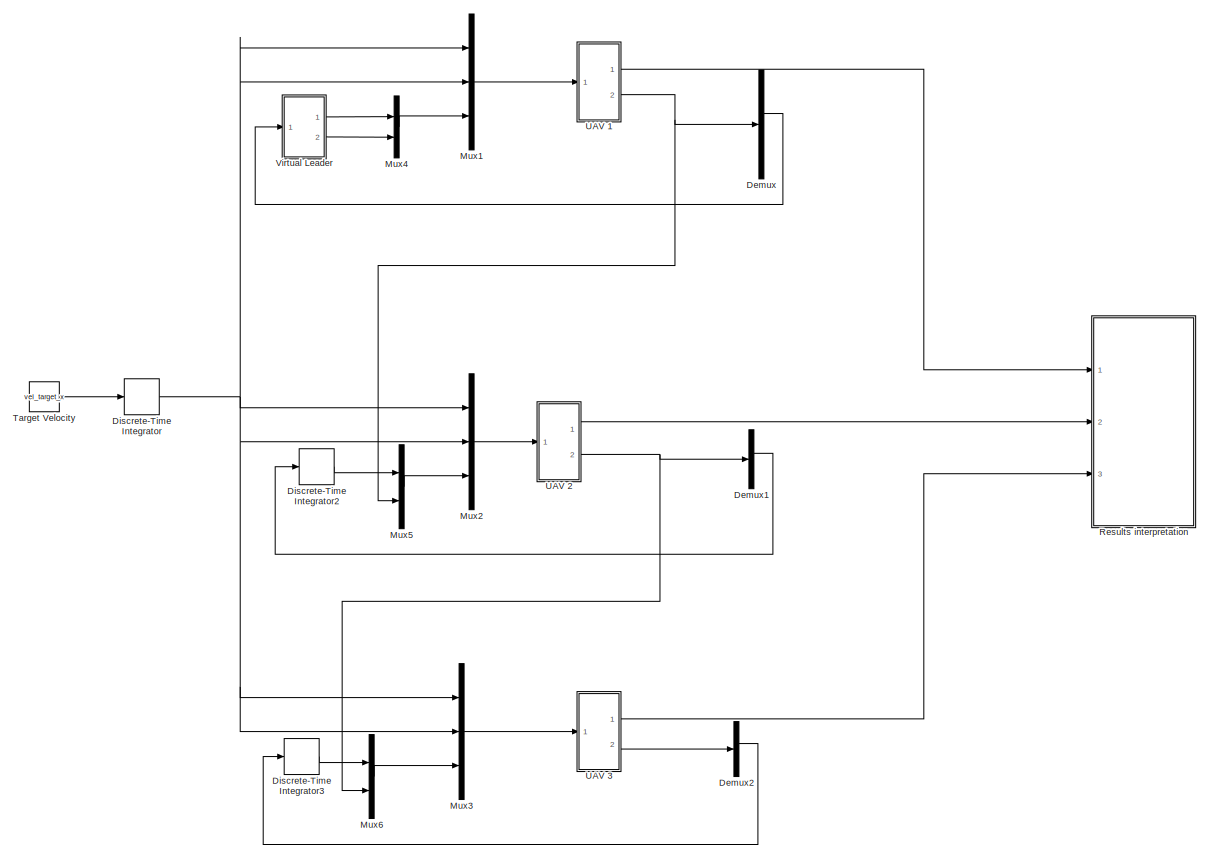
[diagram: root canvas - part 1/2, most of the canvas]
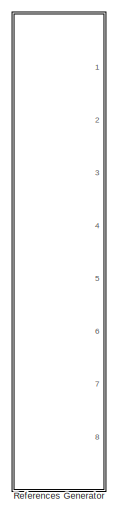
[diagram: root canvas - part 2/2, middle left region]
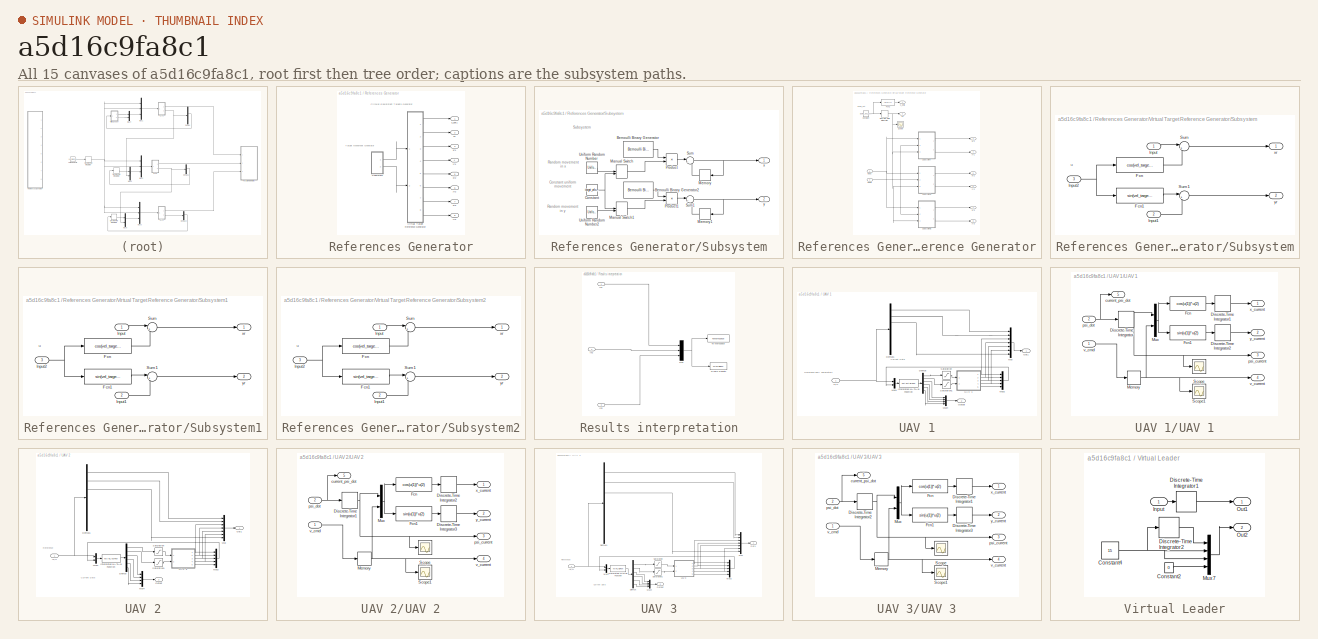
[diagram: thumbnail index - all 15 canvases of the model, root first then tree order]
MODEL slx_a5d16c9fa8c1
KIND model
CONFIG AbsTol = auto
CONFIG EnableMultiTasking = off
CONFIG FixedStep = auto
CONFIG MaxStep = auto
CONFIG MinStep = auto
CONFIG RelTol = 1e-3
CONFIG SampleTimeConstraint = Unconstrained
CONFIG SolverName = VariableStepAuto
CONFIG StartTime = 0.0
CONFIG StopTime = Ttotal
BLOCK [Demux] Demux
  Ports = [1, 4]
BLOCK [Demux] Demux1
  Ports = [1, 4]
BLOCK [Demux] Demux2
  Ports = [1, 4]
BLOCK [DiscreteIntegrator] Discrete-Time Integrator
  ICPrevOutput = DiscIntNeverNeededParam
  ICPrevScaledInput = DiscIntNeverNeededParam
  InitialConditionSetting = Auto
  Ports = [1, 1]
  SampleTime = Ts
BLOCK [DiscreteIntegrator] Discrete-Time Integrator2
  ICPrevOutput = DiscIntNeverNeededParam
  ICPrevScaledInput = DiscIntNeverNeededParam
  InitialConditionSetting = Auto
  Ports = [1, 1]
  SampleTime = Ts
BLOCK [DiscreteIntegrator] Discrete-Time Integrator3
  ICPrevOutput = DiscIntNeverNeededParam
  ICPrevScaledInput = DiscIntNeverNeededParam
  InitialConditionSetting = Auto
  Ports = [1, 1]
  SampleTime = Ts
BLOCK [Mux] Mux1
  DisplayOption = bar
  Inputs = 3
  Ports = [3, 1]
BLOCK [Mux] Mux2
  DisplayOption = bar
  Inputs = 3
  Ports = [3, 1]
BLOCK [Mux] Mux3
  DisplayOption = bar
  Inputs = 3
  Ports = [3, 1]
BLOCK [Mux] Mux4
  DisplayOption = bar
  Inputs = 2
  Ports = [2, 1]
BLOCK [Mux] Mux5
  DisplayOption = bar
  Inputs = 2
  Ports = [2, 1]
BLOCK [Mux] Mux6
  DisplayOption = bar
  Inputs = 2
  Ports = [2, 1]
BLOCK [SubSystem] References Generator
  Commented = on
  Ports = [0, 8]
  RequestExecContextInheritance = off
BLOCK [SubSystem] References Generator/Subsystem
  Commented = on
  Ports = [0, 2]
  RequestExecContextInheritance = off
BLOCK [Reference] References Generator/Subsystem/Bernoulli Binary Generator  REF=commrandsrc3/Bernoulli Binary
Generator
  Ports = [0, 1]
  SourceBlock = commrandsrc3/Bernoulli Binary\nGenerator
  SourceProductBaseCode = CM
  SourceType = Bernoulli Binary Generator
BLOCK [Reference] References Generator/Subsystem/Bernoulli Binary Generator2  REF=commrandsrc3/Bernoulli Binary
Generator
  Ports = [0, 1]
  SourceBlock = commrandsrc3/Bernoulli Binary\nGenerator
  SourceProductBaseCode = CM
  SourceType = Bernoulli Binary Generator
BLOCK [Constant] References Generator/Subsystem/Constant
  SampleTime = Ts
  Value = target_velocity * Ts
BLOCK [ManualSwitch] References Generator/Subsystem/Manual Switch
  CurrentSetting = 0
BLOCK [ManualSwitch] References Generator/Subsystem/Manual Switch1
BLOCK [Memory] References Generator/Subsystem/Memory
  InitialCondition = x0
  NameLocation = top
BLOCK [Memory] References Generator/Subsystem/Memory1
  InitialCondition = y0
  NameLocation = top
BLOCK [Product] References Generator/Subsystem/Product
  Ports = [2, 1]
BLOCK [Product] References Generator/Subsystem/Product1
  Ports = [2, 1]
BLOCK [Sum] References Generator/Subsystem/Sum
  Inputs = |++
  Ports = [2, 1]
BLOCK [Sum] References Generator/Subsystem/Sum1
  Inputs = |++
  Ports = [2, 1]
BLOCK [UniformRandomNumber] References Generator/Subsystem/Uniform Random Number
  Maximum = 3
  Minimum = 0
  SampleTime = Ts
  Seed = def_seed
BLOCK [UniformRandomNumber] References Generator/Subsystem/Uniform Random Number2
  Maximum = 3
  Minimum = 0
  SampleTime = Ts
  Seed = def_seed
BLOCK [Outport] References Generator/Subsystem/x
BLOCK [Outport] References Generator/Subsystem/y
  Port = 2
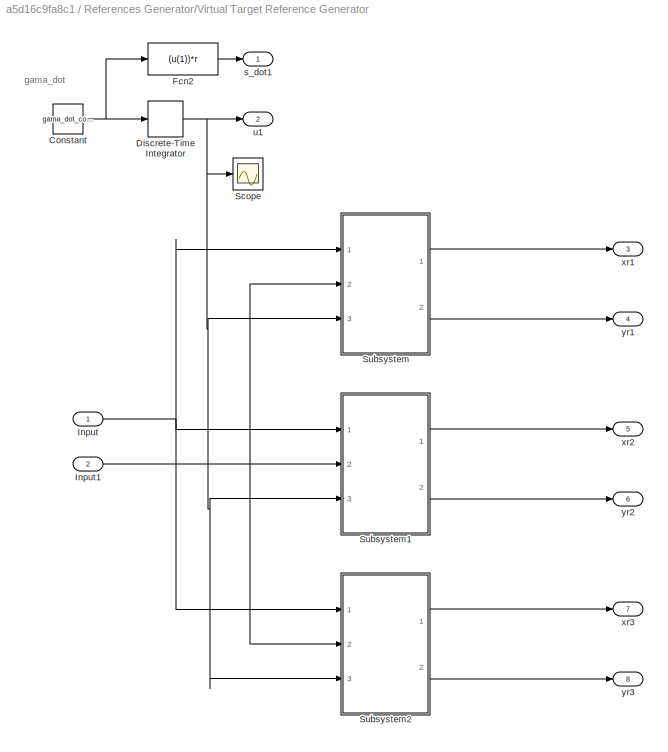
BLOCK [SubSystem] References Generator/Virtual Target Reference Generator
  Ports = [2, 8]
  RequestExecContextInheritance = off
BLOCK [Constant] References Generator/Virtual Target Reference Generator/Constant
  SampleTime = Ts
  Value = gama_dot_constant
BLOCK [DiscreteIntegrator] References Generator/Virtual Target Reference Generator/Discrete-Time Integrator
  ICPrevOutput = DiscIntNeverNeededParam
  ICPrevScaledInput = DiscIntNeverNeededParam
  InitialConditionSetting = Auto
  Ports = [1, 1]
  SampleTime = Ts
BLOCK [Fcn] References Generator/Virtual Target Reference Generator/Fcn2
  Expr = (u(1))*r
BLOCK [Inport] References Generator/Virtual Target Reference Generator/Input
BLOCK [Inport] References Generator/Virtual Target Reference Generator/Input1
  Port = 2
BLOCK [Scope] References Generator/Virtual Target Reference Generator/Scope
  Floating = off
  NumInputPorts = 1
  Ports = [1]
  ScopeSpecificationString = Simulink.scopes.TimeScopeBlockCfg('CurrentConfiguration', extmgr.ConfigurationSet(extmgr.Configuration('Core','General UI',true),extmgr.Configuration('Core','Source UI',true),extmgr.Configuration('Sources','WiredSimulink',true,'DataLoggingVariableName','ScopeData1'),extmgr.Configuration('Visuals','Time Domain',true,'SerializedDisplays',{struct('MinYLimReal','-0.015','MaxYLimReal','0.135','YLabelRe...<+1443ch>
BLOCK [SubSystem] References Generator/Virtual Target Reference Generator/Subsystem
  Ports = [3, 2]
  RequestExecContextInheritance = off
BLOCK [Fcn] References Generator/Virtual Target Reference Generator/Subsystem/Fcn
  Expr = cos(vel_target*u(1))*r
BLOCK [Fcn] References Generator/Virtual Target Reference Generator/Subsystem/Fcn1
  Expr = sin(vel_target*u(1))*r
BLOCK [Inport] References Generator/Virtual Target Reference Generator/Subsystem/Input
BLOCK [Inport] References Generator/Virtual Target Reference Generator/Subsystem/Input1
  Port = 2
BLOCK [Inport] References Generator/Virtual Target Reference Generator/Subsystem/Input2
  Port = 3
BLOCK [Sum] References Generator/Virtual Target Reference Generator/Subsystem/Sum
  Inputs = |++
  NameLocation = top
  Ports = [2, 1]
BLOCK [Sum] References Generator/Virtual Target Reference Generator/Subsystem/Sum1
  Inputs = |++
  Ports = [2, 1]
BLOCK [Outport] References Generator/Virtual Target Reference Generator/Subsystem/xr
  VectorParamsAs1DForOutWhenUnconnected = off
BLOCK [Outport] References Generator/Virtual Target Reference Generator/Subsystem/yr
  Port = 2
  VectorParamsAs1DForOutWhenUnconnected = off
BLOCK [SubSystem] References Generator/Virtual Target Reference Generator/Subsystem1
  Ports = [3, 2]
  RequestExecContextInheritance = off
BLOCK [Fcn] References Generator/Virtual Target Reference Generator/Subsystem1/Fcn
  Expr = cos(vel_target*u(1) + 2*pi/N)*r
BLOCK [Fcn] References Generator/Virtual Target Reference Generator/Subsystem1/Fcn1
  Expr = sin(vel_target*u(1) + 2*pi/N)*r
BLOCK [Inport] References Generator/Virtual Target Reference Generator/Subsystem1/Input
BLOCK [Inport] References Generator/Virtual Target Reference Generator/Subsystem1/Input1
  Port = 2
BLOCK [Inport] References Generator/Virtual Target Reference Generator/Subsystem1/Input2
  Port = 3
BLOCK [Sum] References Generator/Virtual Target Reference Generator/Subsystem1/Sum
  Inputs = |++
  NameLocation = top
  Ports = [2, 1]
BLOCK [Sum] References Generator/Virtual Target Reference Generator/Subsystem1/Sum1
  Inputs = |++
  Ports = [2, 1]
BLOCK [Outport] References Generator/Virtual Target Reference Generator/Subsystem1/xr
  VectorParamsAs1DForOutWhenUnconnected = off
BLOCK [Outport] References Generator/Virtual Target Reference Generator/Subsystem1/yr
  Port = 2
  VectorParamsAs1DForOutWhenUnconnected = off
BLOCK [SubSystem] References Generator/Virtual Target Reference Generator/Subsystem2
  Ports = [3, 2]
  RequestExecContextInheritance = off
BLOCK [Fcn] References Generator/Virtual Target Reference Generator/Subsystem2/Fcn
  Expr = cos(vel_target*u(1) + (2*2*pi)/N)*r
BLOCK [Fcn] References Generator/Virtual Target Reference Generator/Subsystem2/Fcn1
  Expr = sin(vel_target*u(1) + (2*2*pi)/N)*r
BLOCK [Inport] References Generator/Virtual Target Reference Generator/Subsystem2/Input
BLOCK [Inport] References Generator/Virtual Target Reference Generator/Subsystem2/Input1
  Port = 2
BLOCK [Inport] References Generator/Virtual Target Reference Generator/Subsystem2/Input2
  Port = 3
BLOCK [Sum] References Generator/Virtual Target Reference Generator/Subsystem2/Sum
  Inputs = |++
  NameLocation = top
  Ports = [2, 1]
BLOCK [Sum] References Generator/Virtual Target Reference Generator/Subsystem2/Sum1
  Inputs = |++
  Ports = [2, 1]
BLOCK [Outport] References Generator/Virtual Target Reference Generator/Subsystem2/xr
  VectorParamsAs1DForOutWhenUnconnected = off
BLOCK [Outport] References Generator/Virtual Target Reference Generator/Subsystem2/yr
  Port = 2
  VectorParamsAs1DForOutWhenUnconnected = off
BLOCK [Outport] References Generator/Virtual Target Reference Generator/s_dot1
  VectorParamsAs1DForOutWhenUnconnected = off
BLOCK [Outport] References Generator/Virtual Target Reference Generator/u1
  Port = 2
  VectorParamsAs1DForOutWhenUnconnected = off
BLOCK [Outport] References Generator/Virtual Target Reference Generator/xr1
  Port = 3
  VectorParamsAs1DForOutWhenUnconnected = off
BLOCK [Outport] References Generator/Virtual Target Reference Generator/xr2
  Port = 5
  VectorParamsAs1DForOutWhenUnconnected = off
BLOCK [Outport] References Generator/Virtual Target Reference Generator/xr3
  Port = 7
  VectorParamsAs1DForOutWhenUnconnected = off
BLOCK [Outport] References Generator/Virtual Target Reference Generator/yr1
  Port = 4
  VectorParamsAs1DForOutWhenUnconnected = off
BLOCK [Outport] References Generator/Virtual Target Reference Generator/yr2
  Port = 6
  VectorParamsAs1DForOutWhenUnconnected = off
BLOCK [Outport] References Generator/Virtual Target Reference Generator/yr3
  Port = 8
  VectorParamsAs1DForOutWhenUnconnected = off
BLOCK [Outport] References Generator/s_dot1
BLOCK [Outport] References Generator/u1
  Port = 2
BLOCK [Outport] References Generator/xr1
  Port = 3
BLOCK [Outport] References Generator/xr2
  Port = 5
BLOCK [Outport] References Generator/xr3
  Port = 7
BLOCK [Outport] References Generator/yr1
  Port = 4
BLOCK [Outport] References Generator/yr2
  Port = 6
BLOCK [Outport] References Generator/yr3
  Port = 8
BLOCK [SubSystem] Results interpretation
  Ports = [3]
  RequestExecContextInheritance = off
BLOCK [MATLABFcn] Results interpretation/Draws Results
  MATLABFcn = draw_results
  OutputDimensions = 0
  Ports = [1]
BLOCK [Inport] Results interpretation/In1
BLOCK [Inport] Results interpretation/In2
  Port = 2
BLOCK [Inport] Results interpretation/In3
  Port = 3
BLOCK [Mux] Results interpretation/Mux
  DisplayOption = bar
  Inputs = 3
  Ports = [3, 1]
BLOCK [ToWorkspace] Results interpretation/To Workspace
  FixptAsFi = on
  MaxDataPoints = inf
  Ports = [1]
  SampleTime = -1
  VariableName = simulation_data
BLOCK [Constant] Target Velocity
  SampleTime = Ts
  Value = vel_target_x
BLOCK [SubSystem] UAV 1
  Ports = [1, 2]
  RequestExecContextInheritance = off
BLOCK [Inport] UAV 1/(x;y)
BLOCK [Demux] UAV 1/Demux
  Outputs = 6
  Ports = [1, 6]
BLOCK [Demux] UAV 1/Demux1
  Outputs = 7
  Ports = [1, 7]
BLOCK [MATLABFcn] UAV 1/Interpreted MATLAB Function
  MATLABFcn = implemented_controller
  OutputDimensions = 6
  Ports = [1, 1]
BLOCK [Mux] UAV 1/Mux
  DisplayOption = bar
  Inputs = 7
  Ports = [7, 1]
BLOCK [Mux] UAV 1/Mux1
  DisplayOption = bar
  Inputs = 2
  Ports = [2, 1]
BLOCK [Mux] UAV 1/Mux2
  DisplayOption = bar
  Inputs = 5
  Ports = [5, 1]
BLOCK [Mux] UAV 1/Mux4
  DisplayOption = bar
  Ports = [4, 1]
BLOCK [Outport] UAV 1/Out1
BLOCK [Outport] UAV 1/Output
  Port = 2
BLOCK [Saturate] UAV 1/Saturation
  LowerLimit = min_vel
  UpperLimit = max_vel
BLOCK [Saturate] UAV 1/Saturation1
  LowerLimit = min_psi
  UpperLimit = max_psi
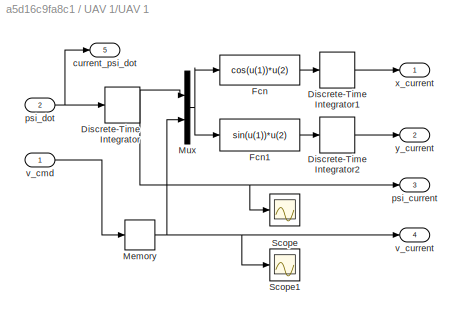
BLOCK [SubSystem] UAV 1/UAV 1
  Ports = [2, 5]
  RequestExecContextInheritance = off
BLOCK [DiscreteIntegrator] UAV 1/UAV 1/Discrete-Time Integrator
  ICPrevOutput = DiscIntNeverNeededParam
  ICPrevScaledInput = DiscIntNeverNeededParam
  InitialCondition = drone1_psi0
  InitialConditionSetting = Auto
  Ports = [1, 1]
  SampleTime = Ts
BLOCK [DiscreteIntegrator] UAV 1/UAV 1/Discrete-Time Integrator1
  ICPrevOutput = DiscIntNeverNeededParam
  ICPrevScaledInput = DiscIntNeverNeededParam
  InitialCondition = drone1_x0
  InitialConditionSetting = Auto
  Ports = [1, 1]
  SampleTime = Ts
BLOCK [DiscreteIntegrator] UAV 1/UAV 1/Discrete-Time Integrator2
  ICPrevOutput = DiscIntNeverNeededParam
  ICPrevScaledInput = DiscIntNeverNeededParam
  InitialCondition = drone1_y0
  InitialConditionSetting = Auto
  Ports = [1, 1]
  SampleTime = Ts
BLOCK [Fcn] UAV 1/UAV 1/Fcn
  Expr = cos(u(1))*u(2)
BLOCK [Fcn] UAV 1/UAV 1/Fcn1
  Expr = sin(u(1))*u(2)
BLOCK [Memory] UAV 1/UAV 1/Memory
  InitialCondition = drone1_v0
BLOCK [Mux] UAV 1/UAV 1/Mux
  DisplayOption = bar
  Inputs = 2
  Ports = [2, 1]
BLOCK [Scope] UAV 1/UAV 1/Scope
  Floating = off
  NumInputPorts = 1
  Ports = [1]
  ScopeSpecificationString = Simulink.scopes.TimeScopeBlockCfg('CurrentConfiguration', extmgr.ConfigurationSet(extmgr.Configuration('Core','General UI',true),extmgr.Configuration('Core','Source UI',true),extmgr.Configuration('Sources','WiredSimulink',true),extmgr.Configuration('Visuals','Time Domain',true,'SerializedDisplays',{struct('MinYLimReal','-1.15856','MaxYLimReal','1.67135','YLabelReal','','MinYLimMag','0.00000','MaxY...<+1383ch>  <repeated x3 — deduplicated; at blocks: Scope>
BLOCK [Scope] UAV 1/UAV 1/Scope1
  Floating = off
  NumInputPorts = 1
  Ports = [1]
  ScopeSpecificationString = Simulink.scopes.TimeScopeBlockCfg('CurrentConfiguration', extmgr.ConfigurationSet(extmgr.Configuration('Core','General UI',true),extmgr.Configuration('Core','Source UI',true),extmgr.Configuration('Sources','WiredSimulink',true,'DataLoggingVariableName','ScopeData3'),extmgr.Configuration('Visuals','Time Domain',true,'SerializedDisplays',{struct('MinYLimReal','3.125','MaxYLimReal','21.875','YLabelRe...<+1424ch>  <repeated x3 — deduplicated; at blocks: Scope1>
BLOCK [Outport] UAV 1/UAV 1/current_psi_dot
  Port = 5
BLOCK [Outport] UAV 1/UAV 1/psi_current
  Port = 3
  VectorParamsAs1DForOutWhenUnconnected = off
BLOCK [Inport] UAV 1/UAV 1/psi_dot
  Port = 2
BLOCK [Inport] UAV 1/UAV 1/v_cmd
BLOCK [Outport] UAV 1/UAV 1/v_current
  Port = 4
  VectorParamsAs1DForOutWhenUnconnected = off
BLOCK [Outport] UAV 1/UAV 1/x_current
  VectorParamsAs1DForOutWhenUnconnected = off
BLOCK [Outport] UAV 1/UAV 1/y_current
  Port = 2
  VectorParamsAs1DForOutWhenUnconnected = off
BLOCK [SubSystem] UAV 2
  Ports = [1, 2]
  RequestExecContextInheritance = off
BLOCK [Inport] UAV 2/(x;y)
BLOCK [Demux] UAV 2/Demux
  Outputs = 6
  Ports = [1, 6]
BLOCK [Demux] UAV 2/Demux1
  Outputs = 7
  Ports = [1, 7]
BLOCK [MATLABFcn] UAV 2/Interpreted MATLAB Function
  MATLABFcn = implemented_controller
  OutputDimensions = 6
  Ports = [1, 1]
BLOCK [Mux] UAV 2/Mux
  DisplayOption = bar
  Inputs = 7
  Ports = [7, 1]
BLOCK [Mux] UAV 2/Mux1
  DisplayOption = bar
  Inputs = 2
  Ports = [2, 1]
BLOCK [Mux] UAV 2/Mux2
  DisplayOption = bar
  Inputs = 5
  Ports = [5, 1]
BLOCK [Mux] UAV 2/Mux4
  DisplayOption = bar
  Ports = [4, 1]
BLOCK [Outport] UAV 2/Out1
BLOCK [Outport] UAV 2/Output
  Port = 2
BLOCK [Saturate] UAV 2/Saturation
  LowerLimit = min_vel
  UpperLimit = max_vel
BLOCK [Saturate] UAV 2/Saturation1
  LowerLimit = min_psi
  UpperLimit = max_psi
BLOCK [SubSystem] UAV 2/UAV 2
  Ports = [2, 5]
  RequestExecContextInheritance = off
BLOCK [DiscreteIntegrator] UAV 2/UAV 2/Discrete-Time Integrator1
  ICPrevOutput = DiscIntNeverNeededParam
  ICPrevScaledInput = DiscIntNeverNeededParam
  InitialCondition = drone2_psi0
  InitialConditionSetting = Auto
  Ports = [1, 1]
  SampleTime = Ts
BLOCK [DiscreteIntegrator] UAV 2/UAV 2/Discrete-Time Integrator2
  ICPrevOutput = DiscIntNeverNeededParam
  ICPrevScaledInput = DiscIntNeverNeededParam
  InitialCondition = drone2_x0
  InitialConditionSetting = Auto
  Ports = [1, 1]
  SampleTime = Ts
BLOCK [DiscreteIntegrator] UAV 2/UAV 2/Discrete-Time Integrator3
  ICPrevOutput = DiscIntNeverNeededParam
  ICPrevScaledInput = DiscIntNeverNeededParam
  InitialCondition = drone2_y0
  InitialConditionSetting = Auto
  Ports = [1, 1]
  SampleTime = Ts
BLOCK [Fcn] UAV 2/UAV 2/Fcn
  Expr = cos(u(1))*u(2)
BLOCK [Fcn] UAV 2/UAV 2/Fcn1
  Expr = sin(u(1))*u(2)
BLOCK [Memory] UAV 2/UAV 2/Memory
  InitialCondition = drone2_v0
BLOCK [Mux] UAV 2/UAV 2/Mux
  DisplayOption = bar
  Inputs = 2
  Ports = [2, 1]
BLOCK [Scope] UAV 2/UAV 2/Scope
  Floating = off
  NumInputPorts = 1
  Ports = [1]
BLOCK [Scope] UAV 2/UAV 2/Scope1
  Floating = off
  NumInputPorts = 1
  Ports = [1]
BLOCK [Outport] UAV 2/UAV 2/current_psi_dot
  Port = 5
BLOCK [Outport] UAV 2/UAV 2/psi_current
  Port = 3
  VectorParamsAs1DForOutWhenUnconnected = off
BLOCK [Inport] UAV 2/UAV 2/psi_dot
  Port = 2
BLOCK [Inport] UAV 2/UAV 2/v_cmd
BLOCK [Outport] UAV 2/UAV 2/v_current
  Port = 4
  VectorParamsAs1DForOutWhenUnconnected = off
BLOCK [Outport] UAV 2/UAV 2/x_current
  VectorParamsAs1DForOutWhenUnconnected = off
BLOCK [Outport] UAV 2/UAV 2/y_current
  Port = 2
  VectorParamsAs1DForOutWhenUnconnected = off
BLOCK [SubSystem] UAV 3
  Ports = [1, 2]
  RequestExecContextInheritance = off
BLOCK [Inport] UAV 3/(x;y)
BLOCK [Demux] UAV 3/Demux
  Outputs = 6
  Ports = [1, 6]
BLOCK [Demux] UAV 3/Demux1
  Outputs = 7
  Ports = [1, 7]
BLOCK [MATLABFcn] UAV 3/Interpreted MATLAB Function
  MATLABFcn = implemented_controller
  OutputDimensions = 6
  Ports = [1, 1]
BLOCK [Mux] UAV 3/Mux
  DisplayOption = bar
  Inputs = 7
  Ports = [7, 1]
BLOCK [Mux] UAV 3/Mux1
  DisplayOption = bar
  Inputs = 2
  Ports = [2, 1]
BLOCK [Mux] UAV 3/Mux2
  DisplayOption = bar
  Inputs = 5
  Ports = [5, 1]
BLOCK [Mux] UAV 3/Mux4
  DisplayOption = bar
  Ports = [4, 1]
BLOCK [Outport] UAV 3/Out1
BLOCK [Outport] UAV 3/Output
  Port = 2
BLOCK [Saturate] UAV 3/Saturation
  LowerLimit = min_vel
  UpperLimit = max_vel
BLOCK [Saturate] UAV 3/Saturation1
  LowerLimit = min_psi
  UpperLimit = max_psi
BLOCK [SubSystem] UAV 3/UAV 3
  Ports = [2, 5]
  RequestExecContextInheritance = off
BLOCK [DiscreteIntegrator] UAV 3/UAV 3/Discrete-Time Integrator1
  ICPrevOutput = DiscIntNeverNeededParam
  ICPrevScaledInput = DiscIntNeverNeededParam
  InitialCondition = drone3_x0
  InitialConditionSetting = Auto
  Ports = [1, 1]
  SampleTime = Ts
BLOCK [DiscreteIntegrator] UAV 3/UAV 3/Discrete-Time Integrator2
  ICPrevOutput = DiscIntNeverNeededParam
  ICPrevScaledInput = DiscIntNeverNeededParam
  InitialCondition = drone3_psi0
  InitialConditionSetting = Auto
  Ports = [1, 1]
  SampleTime = Ts
BLOCK [DiscreteIntegrator] UAV 3/UAV 3/Discrete-Time Integrator3
  ICPrevOutput = DiscIntNeverNeededParam
  ICPrevScaledInput = DiscIntNeverNeededParam
  InitialCondition = drone3_y0
  InitialConditionSetting = Auto
  Ports = [1, 1]
  SampleTime = Ts
BLOCK [Fcn] UAV 3/UAV 3/Fcn
  Expr = cos(u(1))*u(2)
BLOCK [Fcn] UAV 3/UAV 3/Fcn1
  Expr = sin(u(1))*u(2)
BLOCK [Memory] UAV 3/UAV 3/Memory
  InitialCondition = drone3_v0
BLOCK [Mux] UAV 3/UAV 3/Mux
  DisplayOption = bar
  Inputs = 2
  Ports = [2, 1]
BLOCK [Scope] UAV 3/UAV 3/Scope
  Floating = off
  NumInputPorts = 1
  Ports = [1]
BLOCK [Scope] UAV 3/UAV 3/Scope1
  Floating = off
  NumInputPorts = 1
  Ports = [1]
BLOCK [Outport] UAV 3/UAV 3/current_psi_dot
  Port = 5
BLOCK [Outport] UAV 3/UAV 3/psi_current
  Port = 3
  VectorParamsAs1DForOutWhenUnconnected = off
BLOCK [Inport] UAV 3/UAV 3/psi_dot
  Port = 2
BLOCK [Inport] UAV 3/UAV 3/v_cmd
BLOCK [Outport] UAV 3/UAV 3/v_current
  Port = 4
  VectorParamsAs1DForOutWhenUnconnected = off
BLOCK [Outport] UAV 3/UAV 3/x_current
  VectorParamsAs1DForOutWhenUnconnected = off
BLOCK [Outport] UAV 3/UAV 3/y_current
  Port = 2
  VectorParamsAs1DForOutWhenUnconnected = off
BLOCK [SubSystem] Virtual Leader
  Ports = [1, 2]
  RequestExecContextInheritance = off
BLOCK [Constant] Virtual Leader/Constant2
  SampleTime = Ts
  Value = 0
BLOCK [Constant] Virtual Leader/Constant4
  SampleTime = Ts
  Value = 15
BLOCK [DiscreteIntegrator] Virtual Leader/Discrete-Time Integrator1
  ICPrevOutput = DiscIntNeverNeededParam
  ICPrevScaledInput = DiscIntNeverNeededParam
  InitialConditionSetting = Auto
  Ports = [1, 1]
  SampleTime = Ts
BLOCK [DiscreteIntegrator] Virtual Leader/Discrete-Time Integrator2
  ICPrevOutput = DiscIntNeverNeededParam
  ICPrevScaledInput = DiscIntNeverNeededParam
  InitialConditionSetting = Auto
  Ports = [1, 1]
  SampleTime = Ts
BLOCK [Inport] Virtual Leader/Input
BLOCK [Mux] Virtual Leader/Mux7
  DisplayOption = bar
  Ports = [4, 1]
BLOCK [Outport] Virtual Leader/Out1
BLOCK [Outport] Virtual Leader/Out2
  Port = 2
ANNOTATION References Generator: Circular-Equidistant Targets Generator
ANNOTATION References Generator: Target Movement Generator
ANNOTATION References Generator/Subsystem: Constant uniform movement
ANNOTATION References Generator/Subsystem: Random movement in x
ANNOTATION References Generator/Subsystem: Random movement in y
ANNOTATION References Generator/Subsystem: Subsystem
ANNOTATION References Generator/Virtual Target Reference Generator: gama_dot
ANNOTATION References Generator/Virtual Target Reference Generator/Subsystem: u
ANNOTATION References Generator/Virtual Target Reference Generator/Subsystem1: u
ANNOTATION References Generator/Virtual Target Reference Generator/Subsystem2: u
ANNOTATION UAV 1: Current Data
ANNOTATION UAV 1: Reference and l parameters
ANNOTATION UAV 2: Current Data
ANNOTATION UAV 2: Reference
ANNOTATION UAV 3: Current Data
ANNOTATION UAV 3: Reference
LINE Demux1:2 -> Discrete-Time Integrator2:1
LINE Demux2:2 -> Discrete-Time Integrator3:1
LINE Demux:2 -> Virtual Leader:1
LINE Discrete-Time Integrator2:1 -> Mux5:1
LINE Discrete-Time Integrator3:1 -> Mux6:1
NET Discrete-Time Integrator:1 -> Mux1:1, Mux1:2, Mux2:1, Mux2:2, Mux3:1, Mux3:2
LINE Mux1:1 -> UAV 1:1
LINE Mux2:1 -> UAV 2:1
LINE Mux3:1 -> UAV 3:1
LINE Mux4:1 -> Mux1:3
LINE Mux5:1 -> Mux2:3
LINE Mux6:1 -> Mux3:3
LINE References Generator/Subsystem/Bernoulli Binary Generator2:1 -> References Generator/Subsystem/Product1:1
LINE References Generator/Subsystem/Bernoulli Binary Generator:1 -> References Generator/Subsystem/Product:1
NET References Generator/Subsystem/Constant:1 -> References Generator/Subsystem/Manual Switch1:1, References Generator/Subsystem/Manual Switch:2
LINE References Generator/Subsystem/Manual Switch1:1 -> References Generator/Subsystem/Product1:2
LINE References Generator/Subsystem/Manual Switch:1 -> References Generator/Subsystem/Product:2
LINE References Generator/Subsystem/Memory1:1 -> References Generator/Subsystem/Sum1:2
LINE References Generator/Subsystem/Memory:1 -> References Generator/Subsystem/Sum:2
LINE References Generator/Subsystem/Product1:1 -> References Generator/Subsystem/Sum1:1
LINE References Generator/Subsystem/Product:1 -> References Generator/Subsystem/Sum:1
NET References Generator/Subsystem/Sum1:1 -> References Generator/Subsystem/Memory1:1, References Generator/Subsystem/y:1
NET References Generator/Subsystem/Sum:1 -> References Generator/Subsystem/Memory:1, References Generator/Subsystem/x:1
LINE References Generator/Subsystem/Uniform Random Number2:1 -> References Generator/Subsystem/Manual Switch1:2
LINE References Generator/Subsystem/Uniform Random Number:1 -> References Generator/Subsystem/Manual Switch:1
LINE References Generator/Subsystem:1 -> References Generator/Virtual Target Reference Generator:1
LINE References Generator/Subsystem:2 -> References Generator/Virtual Target Reference Generator:2
NET References Generator/Virtual Target Reference Generator/Constant:1 -> References Generator/Virtual Target Reference Generator/Discrete-Time Integrator:1, References Generator/Virtual Target Reference Generator/Fcn2:1
NET References Generator/Virtual Target Reference Generator/Discrete-Time Integrator:1 -> References Generator/Virtual Target Reference Generator/Scope:1, References Generator/Virtual Target Reference Generator/Subsystem1:3, References Generator/Virtual Target Reference Generator/Subsystem2:3, References Generator/Virtual Target Reference Generator/Subsystem:3, References Generator/Virtual Target Reference Generator/u1:1
LINE References Generator/Virtual Target Reference Generator/Fcn2:1 -> References Generator/Virtual Target Reference Generator/s_dot1:1
NET References Generator/Virtual Target Reference Generator/Input1:1 -> References Generator/Virtual Target Reference Generator/Subsystem1:2, References Generator/Virtual Target Reference Generator/Subsystem2:2, References Generator/Virtual Target Reference Generator/Subsystem:2
NET References Generator/Virtual Target Reference Generator/Input:1 -> References Generator/Virtual Target Reference Generator/Subsystem1:1, References Generator/Virtual Target Reference Generator/Subsystem2:1, References Generator/Virtual Target Reference Generator/Subsystem:1
LINE References Generator/Virtual Target Reference Generator/Subsystem/Fcn1:1 -> References Generator/Virtual Target Reference Generator/Subsystem/Sum1:1
LINE References Generator/Virtual Target Reference Generator/Subsystem/Fcn:1 -> References Generator/Virtual Target Reference Generator/Subsystem/Sum:2
LINE References Generator/Virtual Target Reference Generator/Subsystem/Input1:1 -> References Generator/Virtual Target Reference Generator/Subsystem/Sum1:2
NET References Generator/Virtual Target Reference Generator/Subsystem/Input2:1 -> References Generator/Virtual Target Reference Generator/Subsystem/Fcn1:1, References Generator/Virtual Target Reference Generator/Subsystem/Fcn:1
LINE References Generator/Virtual Target Reference Generator/Subsystem/Input:1 -> References Generator/Virtual Target Reference Generator/Subsystem/Sum:1
LINE References Generator/Virtual Target Reference Generator/Subsystem/Sum1:1 -> References Generator/Virtual Target Reference Generator/Subsystem/yr:1
LINE References Generator/Virtual Target Reference Generator/Subsystem/Sum:1 -> References Generator/Virtual Target Reference Generator/Subsystem/xr:1
LINE References Generator/Virtual Target Reference Generator/Subsystem1/Fcn1:1 -> References Generator/Virtual Target Reference Generator/Subsystem1/Sum1:1
LINE References Generator/Virtual Target Reference Generator/Subsystem1/Fcn:1 -> References Generator/Virtual Target Reference Generator/Subsystem1/Sum:2
LINE References Generator/Virtual Target Reference Generator/Subsystem1/Input1:1 -> References Generator/Virtual Target Reference Generator/Subsystem1/Sum1:2
NET References Generator/Virtual Target Reference Generator/Subsystem1/Input2:1 -> References Generator/Virtual Target Reference Generator/Subsystem1/Fcn1:1, References Generator/Virtual Target Reference Generator/Subsystem1/Fcn:1
LINE References Generator/Virtual Target Reference Generator/Subsystem1/Input:1 -> References Generator/Virtual Target Reference Generator/Subsystem1/Sum:1
LINE References Generator/Virtual Target Reference Generator/Subsystem1/Sum1:1 -> References Generator/Virtual Target Reference Generator/Subsystem1/yr:1
LINE References Generator/Virtual Target Reference Generator/Subsystem1/Sum:1 -> References Generator/Virtual Target Reference Generator/Subsystem1/xr:1
LINE References Generator/Virtual Target Reference Generator/Subsystem1:1 -> References Generator/Virtual Target Reference Generator/xr2:1
LINE References Generator/Virtual Target Reference Generator/Subsystem1:2 -> References Generator/Virtual Target Reference Generator/yr2:1
LINE References Generator/Virtual Target Reference Generator/Subsystem2/Fcn1:1 -> References Generator/Virtual Target Reference Generator/Subsystem2/Sum1:1
LINE References Generator/Virtual Target Reference Generator/Subsystem2/Fcn:1 -> References Generator/Virtual Target Reference Generator/Subsystem2/Sum:2
LINE References Generator/Virtual Target Reference Generator/Subsystem2/Input1:1 -> References Generator/Virtual Target Reference Generator/Subsystem2/Sum1:2
NET References Generator/Virtual Target Reference Generator/Subsystem2/Input2:1 -> References Generator/Virtual Target Reference Generator/Subsystem2/Fcn1:1, References Generator/Virtual Target Reference Generator/Subsystem2/Fcn:1
LINE References Generator/Virtual Target Reference Generator/Subsystem2/Input:1 -> References Generator/Virtual Target Reference Generator/Subsystem2/Sum:1
LINE References Generator/Virtual Target Reference Generator/Subsystem2/Sum1:1 -> References Generator/Virtual Target Reference Generator/Subsystem2/yr:1
LINE References Generator/Virtual Target Reference Generator/Subsystem2/Sum:1 -> References Generator/Virtual Target Reference Generator/Subsystem2/xr:1
LINE References Generator/Virtual Target Reference Generator/Subsystem2:1 -> References Generator/Virtual Target Reference Generator/xr3:1
LINE References Generator/Virtual Target Reference Generator/Subsystem2:2 -> References Generator/Virtual Target Reference Generator/yr3:1
LINE References Generator/Virtual Target Reference Generator/Subsystem:1 -> References Generator/Virtual Target Reference Generator/xr1:1
LINE References Generator/Virtual Target Reference Generator/Subsystem:2 -> References Generator/Virtual Target Reference Generator/yr1:1
LINE References Generator/Virtual Target Reference Generator:1 -> References Generator/s_dot1:1
LINE References Generator/Virtual Target Reference Generator:2 -> References Generator/u1:1
LINE References Generator/Virtual Target Reference Generator:3 -> References Generator/xr1:1
LINE References Generator/Virtual Target Reference Generator:4 -> References Generator/yr1:1
LINE References Generator/Virtual Target Reference Generator:5 -> References Generator/xr2:1
LINE References Generator/Virtual Target Reference Generator:6 -> References Generator/yr2:1
LINE References Generator/Virtual Target Reference Generator:7 -> References Generator/xr3:1
LINE References Generator/Virtual Target Reference Generator:8 -> References Generator/yr3:1
LINE Results interpretation/In1:1 -> Results interpretation/Mux:1
LINE Results interpretation/In2:1 -> Results interpretation/Mux:2
LINE Results interpretation/In3:1 -> Results interpretation/Mux:3
NET Results interpretation/Mux:1 -> Results interpretation/Draws Results:1, Results interpretation/To Workspace:1
LINE Target Velocity:1 -> Discrete-Time Integrator:1
NET UAV 1/(x;y):1 -> UAV 1/Demux1:1, UAV 1/Mux1:1
LINE UAV 1/Demux1:1 -> UAV 1/Mux:1
LINE UAV 1/Demux1:2 -> UAV 1/Mux:2
LINE UAV 1/Demux1:3 -> UAV 1/Mux:7
LINE UAV 1/Demux:1 -> UAV 1/Saturation:1
LINE UAV 1/Demux:2 -> UAV 1/Saturation1:1
LINE UAV 1/Demux:3 -> UAV 1/Mux4:1
LINE UAV 1/Demux:4 -> UAV 1/Mux4:2
LINE UAV 1/Demux:5 -> UAV 1/Mux4:3
LINE UAV 1/Demux:6 -> UAV 1/Mux4:4
LINE UAV 1/Interpreted MATLAB Function:1 -> UAV 1/Demux:1
LINE UAV 1/Mux1:1 -> UAV 1/Interpreted MATLAB Function:1
LINE UAV 1/Mux2:1 -> UAV 1/Mux1:2
LINE UAV 1/Mux4:1 -> UAV 1/Output:1
LINE UAV 1/Mux:1 -> UAV 1/Out1:1
LINE UAV 1/Saturation1:1 -> UAV 1/UAV 1:2
LINE UAV 1/Saturation:1 -> UAV 1/UAV 1:1
LINE UAV 1/UAV 1/Discrete-Time Integrator1:1 -> UAV 1/UAV 1/x_current:1
LINE UAV 1/UAV 1/Discrete-Time Integrator2:1 -> UAV 1/UAV 1/y_current:1
NET UAV 1/UAV 1/Discrete-Time Integrator:1 -> UAV 1/UAV 1/Mux:1, UAV 1/UAV 1/Scope:1, UAV 1/UAV 1/psi_current:1
LINE UAV 1/UAV 1/Fcn1:1 -> UAV 1/UAV 1/Discrete-Time Integrator2:1
LINE UAV 1/UAV 1/Fcn:1 -> UAV 1/UAV 1/Discrete-Time Integrator1:1
NET UAV 1/UAV 1/Memory:1 -> UAV 1/UAV 1/Mux:2, UAV 1/UAV 1/Scope1:1, UAV 1/UAV 1/v_current:1
NET UAV 1/UAV 1/Mux:1 -> UAV 1/UAV 1/Fcn1:1, UAV 1/UAV 1/Fcn:1
NET UAV 1/UAV 1/psi_dot:1 -> UAV 1/UAV 1/Discrete-Time Integrator:1, UAV 1/UAV 1/current_psi_dot:1
LINE UAV 1/UAV 1/v_cmd:1 -> UAV 1/UAV 1/Memory:1
NET UAV 1/UAV 1:1 -> UAV 1/Mux2:1, UAV 1/Mux:3
NET UAV 1/UAV 1:2 -> UAV 1/Mux2:2, UAV 1/Mux:4
NET UAV 1/UAV 1:3 -> UAV 1/Mux2:3, UAV 1/Mux:5
NET UAV 1/UAV 1:4 -> UAV 1/Mux2:4, UAV 1/Mux:6
LINE UAV 1/UAV 1:5 -> UAV 1/Mux2:5
LINE UAV 1:1 -> Results interpretation:1
NET UAV 1:2 -> Demux:1, Mux5:2
NET UAV 2/(x;y):1 -> UAV 2/Demux1:1, UAV 2/Mux1:1
LINE UAV 2/Demux1:1 -> UAV 2/Mux:1
LINE UAV 2/Demux1:2 -> UAV 2/Mux:2
LINE UAV 2/Demux1:3 -> UAV 2/Mux:7
LINE UAV 2/Demux:1 -> UAV 2/Saturation:1
LINE UAV 2/Demux:2 -> UAV 2/Saturation1:1
LINE UAV 2/Demux:3 -> UAV 2/Mux4:1
LINE UAV 2/Demux:4 -> UAV 2/Mux4:2
LINE UAV 2/Demux:5 -> UAV 2/Mux4:3
LINE UAV 2/Demux:6 -> UAV 2/Mux4:4
LINE UAV 2/Interpreted MATLAB Function:1 -> UAV 2/Demux:1
LINE UAV 2/Mux1:1 -> UAV 2/Interpreted MATLAB Function:1
LINE UAV 2/Mux2:1 -> UAV 2/Mux1:2
LINE UAV 2/Mux4:1 -> UAV 2/Output:1
LINE UAV 2/Mux:1 -> UAV 2/Out1:1
LINE UAV 2/Saturation1:1 -> UAV 2/UAV 2:2
LINE UAV 2/Saturation:1 -> UAV 2/UAV 2:1
NET UAV 2/UAV 2/Discrete-Time Integrator1:1 -> UAV 2/UAV 2/Mux:1, UAV 2/UAV 2/Scope:1, UAV 2/UAV 2/psi_current:1
LINE UAV 2/UAV 2/Discrete-Time Integrator2:1 -> UAV 2/UAV 2/x_current:1
LINE UAV 2/UAV 2/Discrete-Time Integrator3:1 -> UAV 2/UAV 2/y_current:1
LINE UAV 2/UAV 2/Fcn1:1 -> UAV 2/UAV 2/Discrete-Time Integrator3:1
LINE UAV 2/UAV 2/Fcn:1 -> UAV 2/UAV 2/Discrete-Time Integrator2:1
NET UAV 2/UAV 2/Memory:1 -> UAV 2/UAV 2/Mux:2, UAV 2/UAV 2/Scope1:1, UAV 2/UAV 2/v_current:1
NET UAV 2/UAV 2/Mux:1 -> UAV 2/UAV 2/Fcn1:1, UAV 2/UAV 2/Fcn:1
NET UAV 2/UAV 2/psi_dot:1 -> UAV 2/UAV 2/Discrete-Time Integrator1:1, UAV 2/UAV 2/current_psi_dot:1
LINE UAV 2/UAV 2/v_cmd:1 -> UAV 2/UAV 2/Memory:1
NET UAV 2/UAV 2:1 -> UAV 2/Mux2:1, UAV 2/Mux:3
NET UAV 2/UAV 2:2 -> UAV 2/Mux2:2, UAV 2/Mux:4
NET UAV 2/UAV 2:3 -> UAV 2/Mux2:3, UAV 2/Mux:5
NET UAV 2/UAV 2:4 -> UAV 2/Mux2:4, UAV 2/Mux:6
LINE UAV 2/UAV 2:5 -> UAV 2/Mux2:5
LINE UAV 2:1 -> Results interpretation:2
NET UAV 2:2 -> Demux1:1, Mux6:2
NET UAV 3/(x;y):1 -> UAV 3/Demux1:1, UAV 3/Mux1:1
LINE UAV 3/Demux1:1 -> UAV 3/Mux:1
LINE UAV 3/Demux1:2 -> UAV 3/Mux:2
LINE UAV 3/Demux1:3 -> UAV 3/Mux:7
LINE UAV 3/Demux:1 -> UAV 3/Saturation:1
LINE UAV 3/Demux:2 -> UAV 3/Saturation1:1
LINE UAV 3/Demux:3 -> UAV 3/Mux4:1
LINE UAV 3/Demux:4 -> UAV 3/Mux4:2
LINE UAV 3/Demux:5 -> UAV 3/Mux4:3
LINE UAV 3/Demux:6 -> UAV 3/Mux4:4
LINE UAV 3/Interpreted MATLAB Function:1 -> UAV 3/Demux:1
LINE UAV 3/Mux1:1 -> UAV 3/Interpreted MATLAB Function:1
LINE UAV 3/Mux2:1 -> UAV 3/Mux1:2
LINE UAV 3/Mux4:1 -> UAV 3/Output:1
LINE UAV 3/Mux:1 -> UAV 3/Out1:1
LINE UAV 3/Saturation1:1 -> UAV 3/UAV 3:2
LINE UAV 3/Saturation:1 -> UAV 3/UAV 3:1
LINE UAV 3/UAV 3/Discrete-Time Integrator1:1 -> UAV 3/UAV 3/x_current:1
NET UAV 3/UAV 3/Discrete-Time Integrator2:1 -> UAV 3/UAV 3/Mux:1, UAV 3/UAV 3/Scope:1, UAV 3/UAV 3/psi_current:1
LINE UAV 3/UAV 3/Discrete-Time Integrator3:1 -> UAV 3/UAV 3/y_current:1
LINE UAV 3/UAV 3/Fcn1:1 -> UAV 3/UAV 3/Discrete-Time Integrator3:1
LINE UAV 3/UAV 3/Fcn:1 -> UAV 3/UAV 3/Discrete-Time Integrator1:1
NET UAV 3/UAV 3/Memory:1 -> UAV 3/UAV 3/Mux:2, UAV 3/UAV 3/Scope1:1, UAV 3/UAV 3/v_current:1
NET UAV 3/UAV 3/Mux:1 -> UAV 3/UAV 3/Fcn1:1, UAV 3/UAV 3/Fcn:1
NET UAV 3/UAV 3/psi_dot:1 -> UAV 3/UAV 3/Discrete-Time Integrator2:1, UAV 3/UAV 3/current_psi_dot:1
LINE UAV 3/UAV 3/v_cmd:1 -> UAV 3/UAV 3/Memory:1
NET UAV 3/UAV 3:1 -> UAV 3/Mux2:1, UAV 3/Mux:3
NET UAV 3/UAV 3:2 -> UAV 3/Mux2:2, UAV 3/Mux:4
NET UAV 3/UAV 3:3 -> UAV 3/Mux2:3, UAV 3/Mux:5
NET UAV 3/UAV 3:4 -> UAV 3/Mux2:4, UAV 3/Mux:6
LINE UAV 3/UAV 3:5 -> UAV 3/Mux2:5
LINE UAV 3:1 -> Results interpretation:3
LINE UAV 3:2 -> Demux2:1
LINE Virtual Leader/Constant2:1 -> Virtual Leader/Mux7:4
NET Virtual Leader/Constant4:1 -> Virtual Leader/Discrete-Time Integrator2:1, Virtual Leader/Mux7:2, Virtual Leader/Mux7:3
LINE Virtual Leader/Discrete-Time Integrator1:1 -> Virtual Leader/Out1:1
LINE Virtual Leader/Discrete-Time Integrator2:1 -> Virtual Leader/Mux7:1
LINE Virtual Leader/Input:1 -> Virtual Leader/Discrete-Time Integrator1:1
LINE Virtual Leader/Mux7:1 -> Virtual Leader/Out2:1
LINE Virtual Leader:1 -> Mux4:1
LINE Virtual Leader:2 -> Mux4:2
note: NET lines group one-source signal fan-out (src -> all destinations, sorted); 1:1 wires keep LINE
